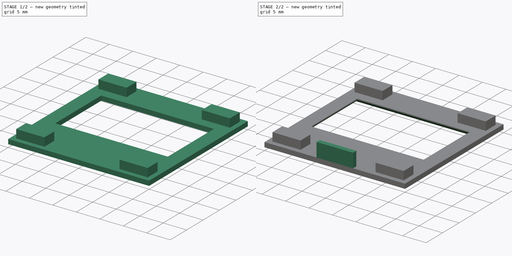
[diagram: build sequence overview — one tinted view per stage of 2, left to right]
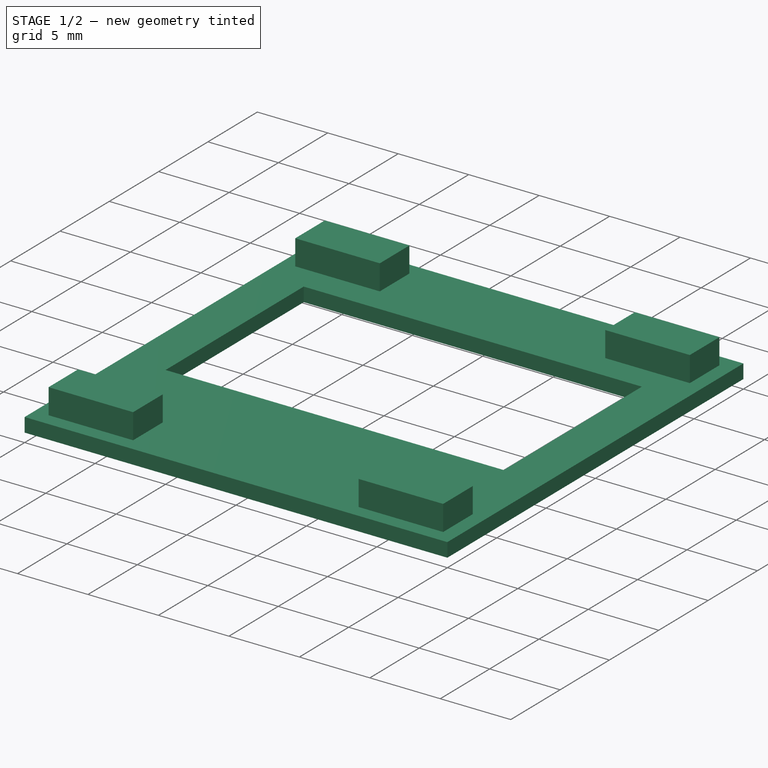
[diagram: stage 1 of 2 — iso view after this stage's code; geometry added in this stage tinted green]
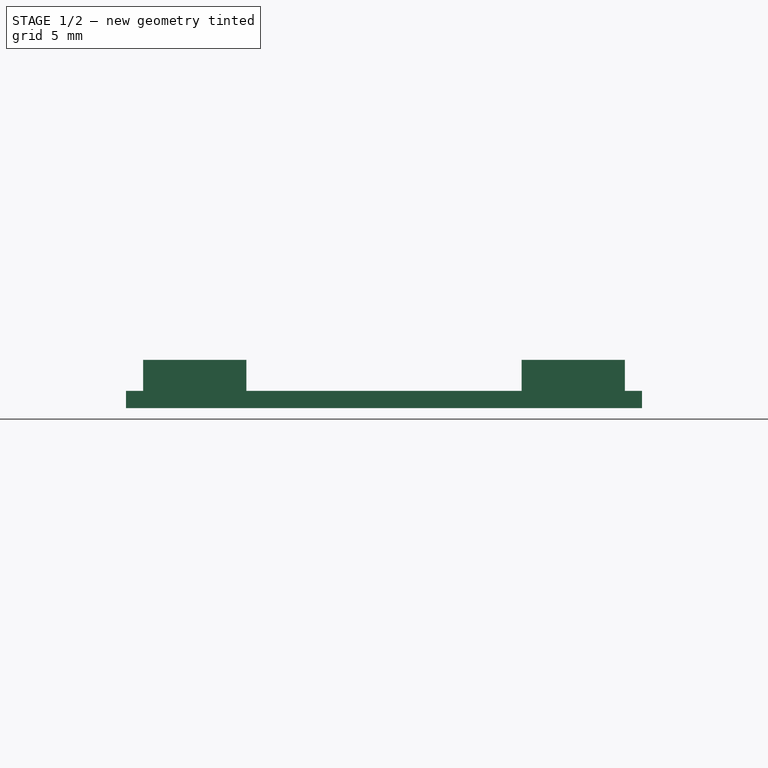
[diagram: stage 1 of 2 — front view after this stage's code; geometry added in this stage tinted green]
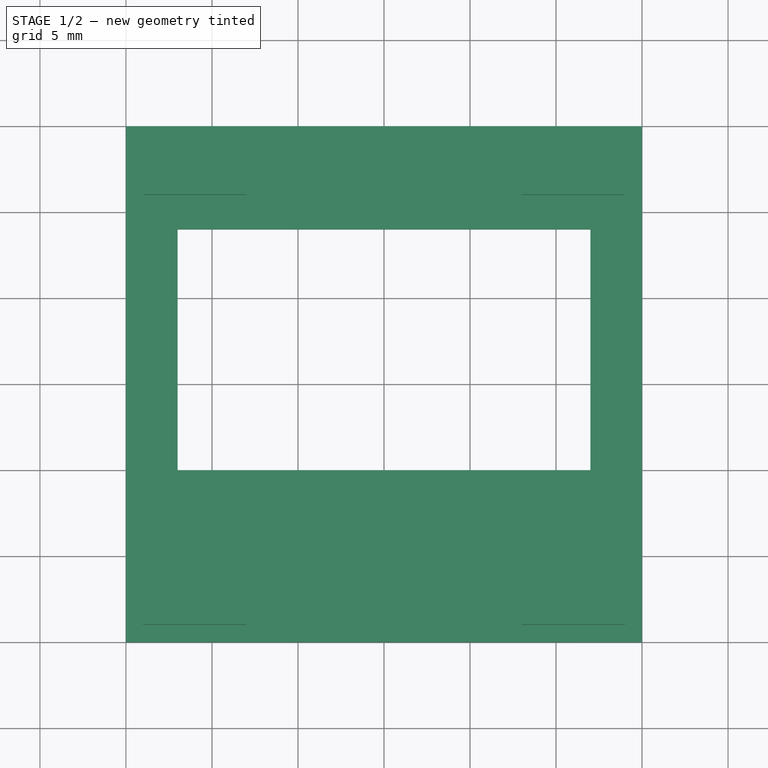
[diagram: stage 1 of 2 — top view after this stage's code; geometry added in this stage tinted green]
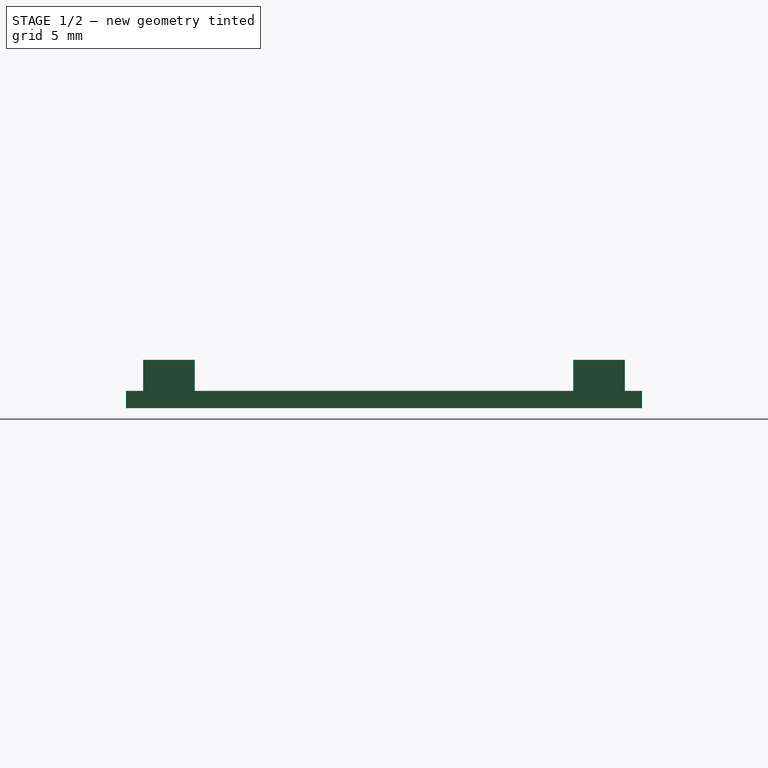
[diagram: stage 1 of 2 — right view after this stage's code; geometry added in this stage tinted green]
FCSTD DOCUMENT  (FreeCAD 0.16R6707 (Git))
Label: oled_top
License: All rights reserved
LicenseURL: http://en.wikipedia.org/wiki/All_rights_reserved
objects: Sketcher::SketchObject×3, PartDesign::Pad×3, PartDesign::Chamfer×1
note: 10 computed .brp shape members not serialized (recipe doc carries the construction recipe); baked Part::Feature solids carry a one-line shape summary decoded from their .brp

FEATURE [Sketcher::SketchObject] Sketch
  sketch-geometry (8):
    g0: LineSegment StartX=-15 StartY=15 StartZ=0 EndX=15 EndY=15 EndZ=0
    g1: LineSegment StartX=15 StartY=15 StartZ=0 EndX=15 EndY=-15 EndZ=0
    g2: LineSegment StartX=15 StartY=-15 StartZ=0 EndX=-15 EndY=-15 EndZ=0
    g3: LineSegment StartX=-15 StartY=-15 StartZ=0 EndX=-15 EndY=15 EndZ=0
    g4: LineSegment StartX=-12 StartY=9 StartZ=0 EndX=12 EndY=9 EndZ=0
    g5: LineSegment StartX=12 StartY=9 StartZ=0 EndX=12 EndY=-5 EndZ=0
    g6: LineSegment StartX=12 StartY=-5 StartZ=0 EndX=-12 EndY=-5 EndZ=0
    g7: LineSegment StartX=-12 StartY=-5 StartZ=0 EndX=-12 EndY=9 EndZ=0
  constraints (24):
    c: Coincident(g0,g1)
    c: Coincident(g1,g2)
    c: Coincident(g2,g3)
    c: Coincident(g3,g0)
    c: Horizontal(g0)
    c: Horizontal(g2)
    c: Vertical(g1)
    c: Vertical(g3)
    c: Symmetric(g0,g0,g-2)
    c: Symmetric(g0,g2,g-1)
    c: DistanceX(g0,g0) = 30
    c: DistanceY(g2,g0) = 30
    c: Coincident(g4,g5)
    c: Coincident(g5,g6)
    c: Coincident(g6,g7)
    c: Coincident(g7,g4)
    c: Horizontal(g4)
    c: Horizontal(g6)
    c: Vertical(g5)
    c: Vertical(g7)
    c: Symmetric(g4,g4,g-2)
    c: DistanceX(g4,g0) = 3
    c: DistanceY(g4,g0) = 6
    c: DistanceY(g2,g6) = 10
FEATURE [PartDesign::Pad] Pad
  Length = 1
  Length2 = 100
  Sketch = -> Sketch
  Type = 0
FEATURE [Sketcher::SketchObject] Sketch001
  Placement = pos=(0,0,1) rot=(0,0,1;0rad)
  Support = -> Pad [Face10]
  sketch-geometry (24):
    g0: LineSegment StartX=-14 StartY=14 StartZ=0 EndX=-8 EndY=14 EndZ=0
    g1: LineSegment StartX=-8 StartY=14 StartZ=0 EndX=-8 EndY=11 EndZ=0
    g2: LineSegment StartX=-8 StartY=11 StartZ=0 EndX=-14 EndY=11 EndZ=0
    g3: LineSegment StartX=-14 StartY=11 StartZ=0 EndX=-14 EndY=14 EndZ=0
    g4: LineSegment StartX=8 StartY=14 StartZ=0 EndX=14 EndY=14 EndZ=0
    g5: LineSegment StartX=14 StartY=14 StartZ=0 EndX=14 EndY=11 EndZ=0
    g6: LineSegment StartX=14 StartY=11 StartZ=0 EndX=8 EndY=11 EndZ=0
    g7: LineSegment StartX=8 StartY=11 StartZ=0 EndX=8 EndY=14 EndZ=0
    g8: LineSegment StartX=-14 StartY=-11 StartZ=0 EndX=-8 EndY=-11 EndZ=0
    g9: LineSegment StartX=-8 StartY=-11 StartZ=0 EndX=-8 EndY=-14 EndZ=0
    g10: LineSegment StartX=-8 StartY=-14 StartZ=0 EndX=-14 EndY=-14 EndZ=0
    g11: LineSegment StartX=-14 StartY=-14 StartZ=0 EndX=-14 EndY=-11 EndZ=0
    g12: LineSegment StartX=8 StartY=-11 StartZ=0 EndX=14 EndY=-11 EndZ=0
    g13: LineSegment StartX=14 StartY=-11 StartZ=0 EndX=14 EndY=-14 EndZ=0
    g14: LineSegment StartX=14 StartY=-14 StartZ=0 EndX=8 EndY=-14 EndZ=0
    g15: LineSegment StartX=8 StartY=-14 StartZ=0 EndX=8 EndY=-11 EndZ=0
    g16: LineSegment [constr] StartX=-8 StartY=14 StartZ=0 EndX=8 EndY=14 EndZ=0
    g17: LineSegment [constr] StartX=-8 StartY=11 StartZ=0 EndX=8 EndY=11 EndZ=0
    g18: LineSegment [constr] StartX=8 StartY=11 StartZ=0 EndX=8 EndY=-11 EndZ=0
    g19: LineSegment [constr] StartX=14 StartY=11 StartZ=0 EndX=14 EndY=-11 EndZ=0
    g20: LineSegment [constr] StartX=8 StartY=-11 StartZ=0 EndX=-8 EndY=-11 EndZ=0
    g21: LineSegment [constr] StartX=-8 StartY=-14 StartZ=0 EndX=8 EndY=-14 EndZ=0
    g22: LineSegment [constr] StartX=-8 StartY=-11 StartZ=0 EndX=-8 EndY=11 EndZ=0
    g23: LineSegment [constr] StartX=-14 StartY=11 StartZ=0 EndX=-14 EndY=-11 EndZ=0
  constraints (63):
    c: Coincident(g0,g1)
    c: Coincident(g1,g2)
    c: Coincident(g2,g3)
    c: Coincident(g3,g0)
    c: Horizontal(g0)
    c: Horizontal(g2)
    c: Vertical(g1)
    c: Vertical(g3)
    c: Coincident(g4,g5)
    c: Coincident(g5,g6)
    c: Coincident(g6,g7)
    c: Coincident(g7,g4)
    c: Horizontal(g4)
    c: Horizontal(g6)
    c: Vertical(g5)
    c: Vertical(g7)
    c: Coincident(g8,g9)
    c: Coincident(g9,g10)
    c: Coincident(g10,g11)
    c: Coincident(g11,g8)
    c: Horizontal(g8)
    c: Horizontal(g10)
    c: Vertical(g9)
    c: Vertical(g11)
    c: Coincident(g12,g13)
    c: Coincident(g13,g14)
    c: Coincident(g14,g15)
    c: Coincident(g15,g12)
    c: Horizontal(g12)
    c: Horizontal(g14)
    c: Vertical(g13)
    c: Vertical(g15)
    c: Coincident(g16,g0)
    c: Coincident(g16,g4)
    c: Coincident(g17,g1)
    c: Coincident(g17,g6)
    c: Horizontal(g17)
    c: Coincident(g18,g6)
    c: Coincident(g18,g12)
    c: Coincident(g19,g5)
    c: Coincident(g19,g12)
    c: Coincident(g20,g12)
    c: Coincident(g20,g8)
    c: Horizontal(g20)
    c: Coincident(g21,g9)
    c: Coincident(g21,g14)
    c: Horizontal(g21)
    c: Coincident(g22,g8)
    c: Coincident(g22,g1)
    c: Vertical(g22)
    c: Coincident(g23,g2)
    c: Coincident(g23,g8)
    c: Vertical(g23)
    c: Vertical(g18)
    c: Vertical(g19)
    c: DistanceX(g-1,g4) = 14
    c: DistanceY(g-1,g4) = 14
    c: DistanceX(g0,g0) = 6
    c: Symmetric(g0,g4,g-2)
    c: Symmetric(g0,g4,g-2)
    c: Symmetric(g13,g4,g-1)
    c: Symmetric(g12,g5,g-1)
    c: DistanceY(g5,g4) = 3
FEATURE [PartDesign::Pad] Pad001
  Length = 1.8
  Length2 = 100
  Sketch = -> Sketch001
  Type = 0
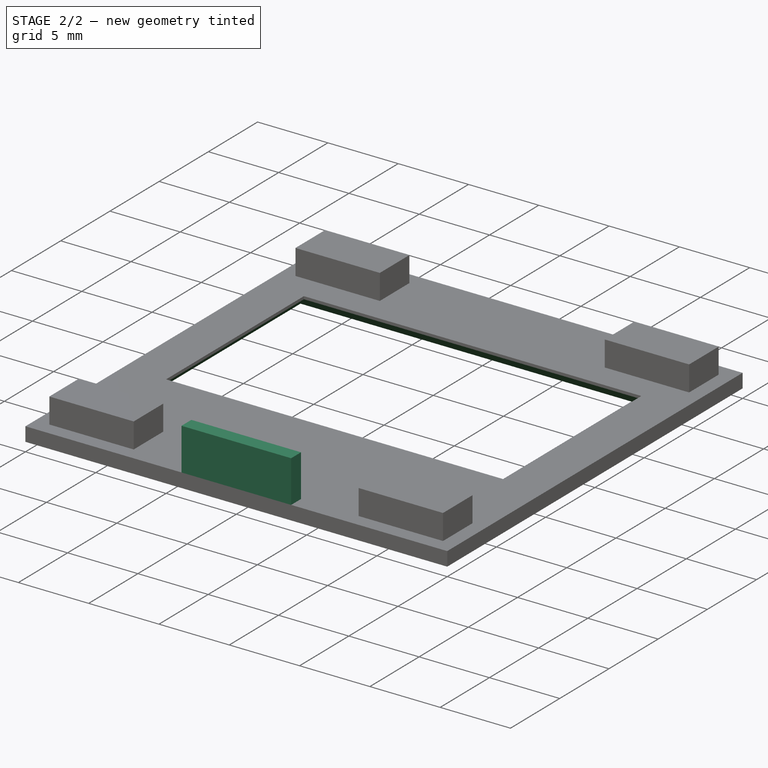
[diagram: stage 2 of 2 — iso view after this stage's code; geometry added in this stage tinted green]
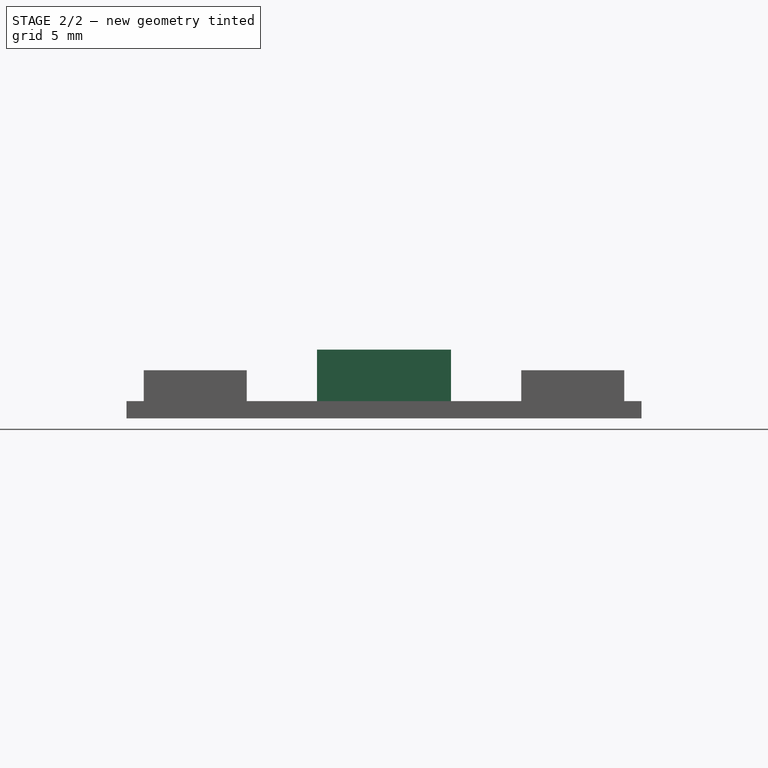
[diagram: stage 2 of 2 — front view after this stage's code; geometry added in this stage tinted green]
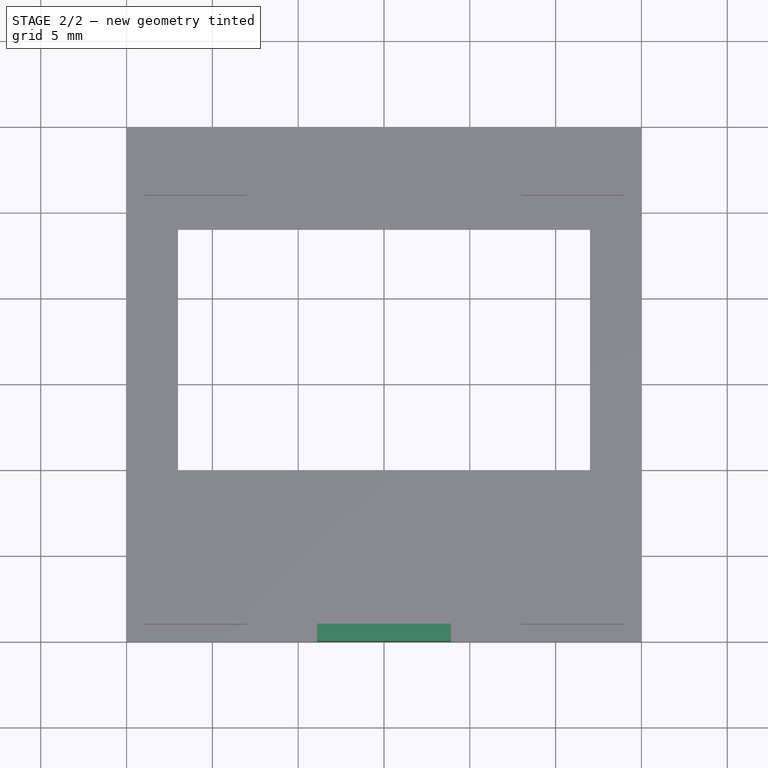
[diagram: stage 2 of 2 — top view after this stage's code; geometry added in this stage tinted green]
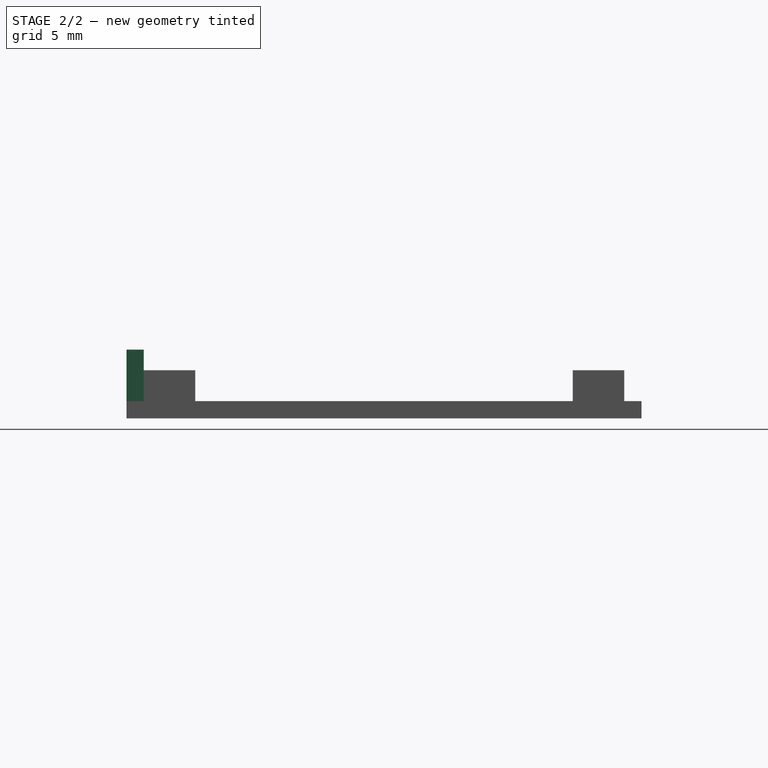
[diagram: stage 2 of 2 — right view after this stage's code; geometry added in this stage tinted green]
FEATURE [Sketcher::SketchObject] Sketch002
  Placement = pos=(0,0,1) rot=(0,0,1;0rad)
  Support = -> Pad001 [Face5]
  sketch-geometry (4):
    g0: LineSegment StartX=-4 StartY=-14 StartZ=0 EndX=4 EndY=-14 EndZ=0
    g1: LineSegment StartX=4 StartY=-14 StartZ=0 EndX=4 EndY=-15 EndZ=0
    g2: LineSegment StartX=4 StartY=-15 StartZ=0 EndX=-4 EndY=-15 EndZ=0
    g3: LineSegment StartX=-4 StartY=-15 StartZ=0 EndX=-4 EndY=-14 EndZ=0
  constraints (12):
    c: Coincident(g0,g1)
    c: Coincident(g1,g2)
    c: Coincident(g2,g3)
    c: Coincident(g3,g0)
    c: Horizontal(g0)
    c: Horizontal(g2)
    c: Vertical(g1)
    c: Vertical(g3)
    c: Symmetric(g1,g2,g-2)
    c: DistanceX(g2,g1) = 8
    c: DistanceY(g2,g0) = 1
    c: DistanceY(g1,g-1) = 15
FEATURE [PartDesign::Pad] Pad002
  Length = 3
  Length2 = 100
  Sketch = -> Sketch002
  Type = 0
FEATURE [PartDesign::Chamfer] Chamfer
  Base = -> Pad002 [Edge12,Edge15,Edge14,Edge13]
  Size = 0.8
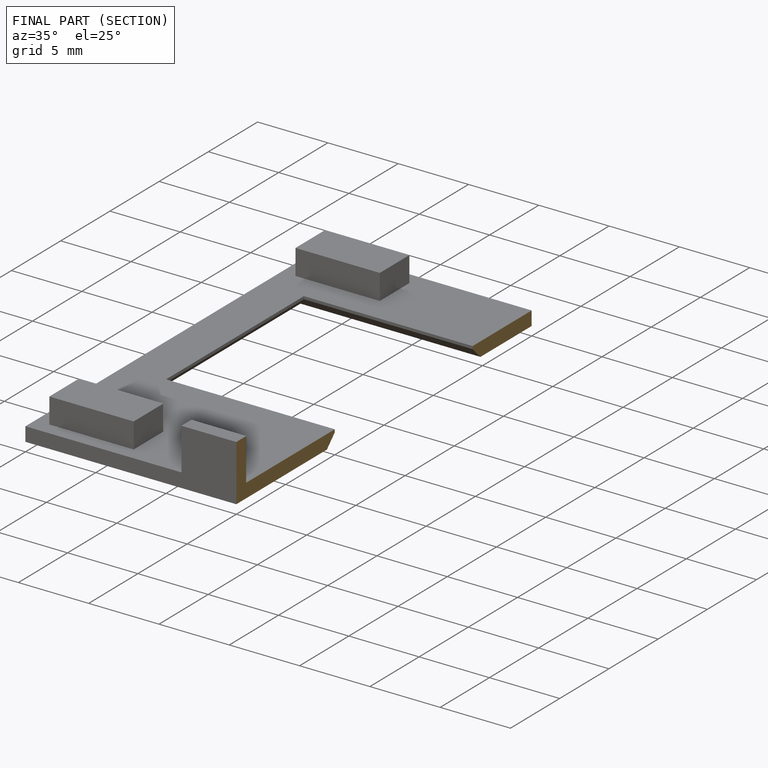
[diagram: finished part — half-section view (interior)]
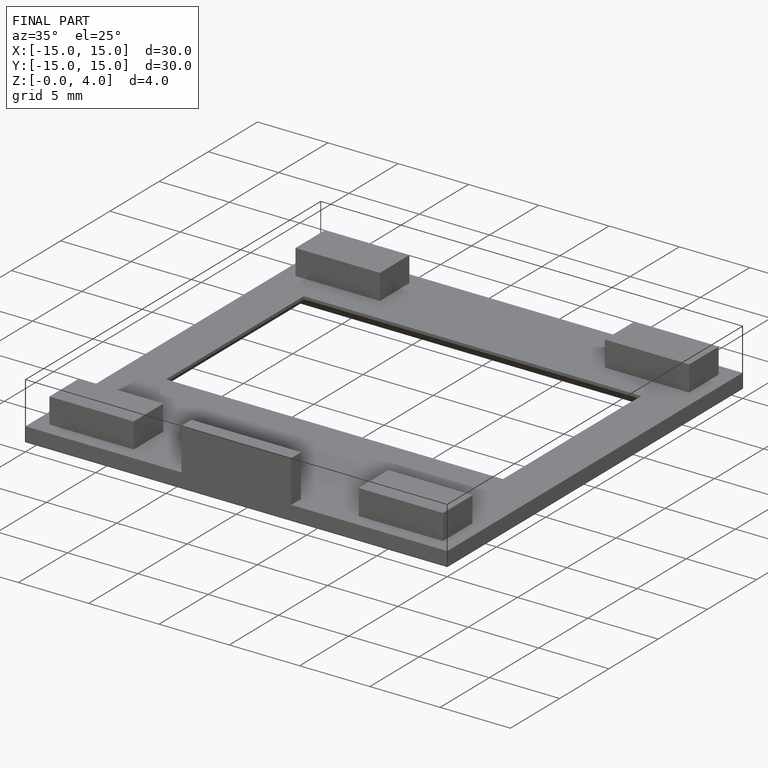
[diagram: finished part — iso view with bounding-box wireframe]
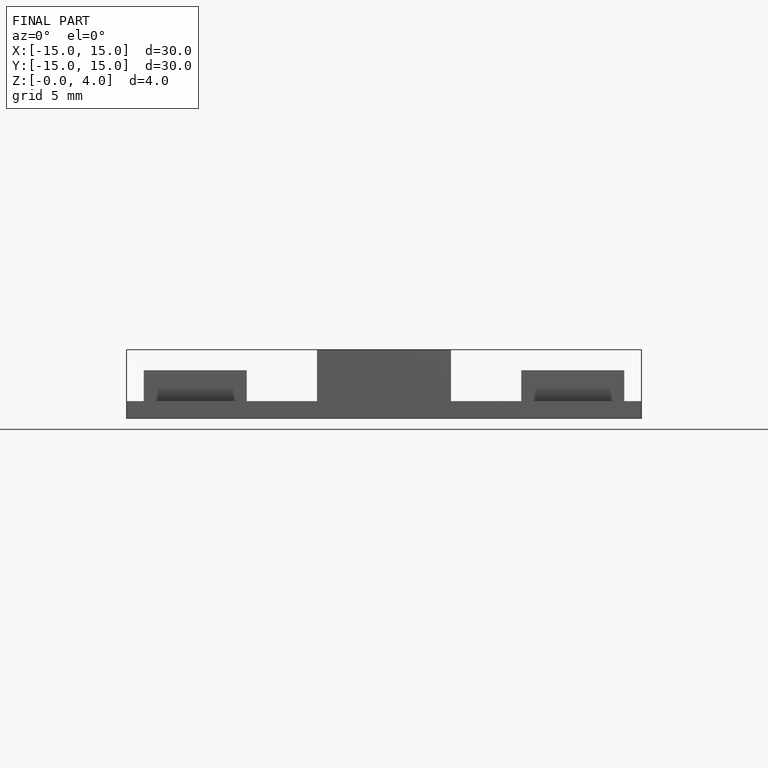
[diagram: finished part — front view with bounding-box wireframe]
